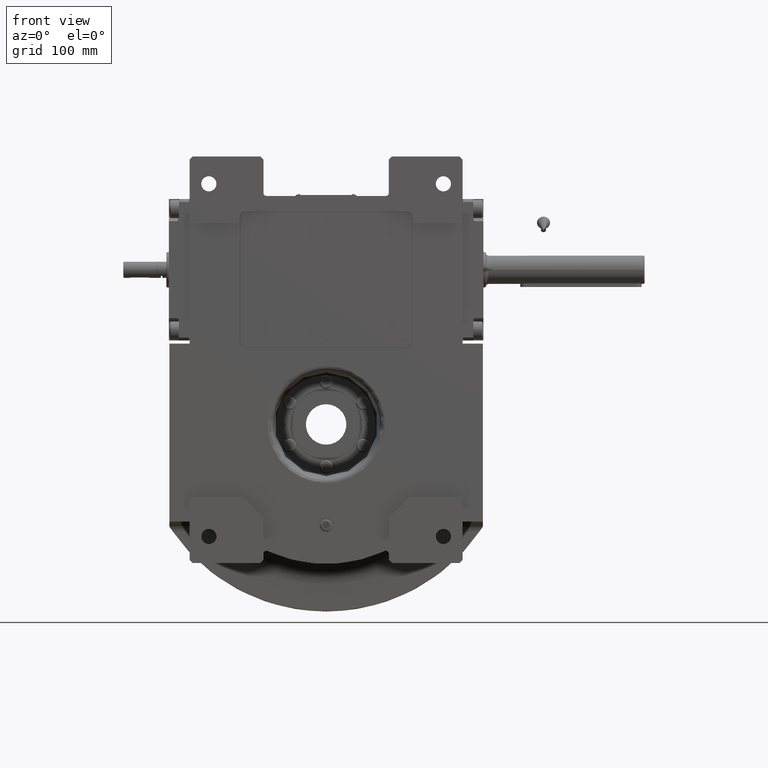
[diagram: clean part render]
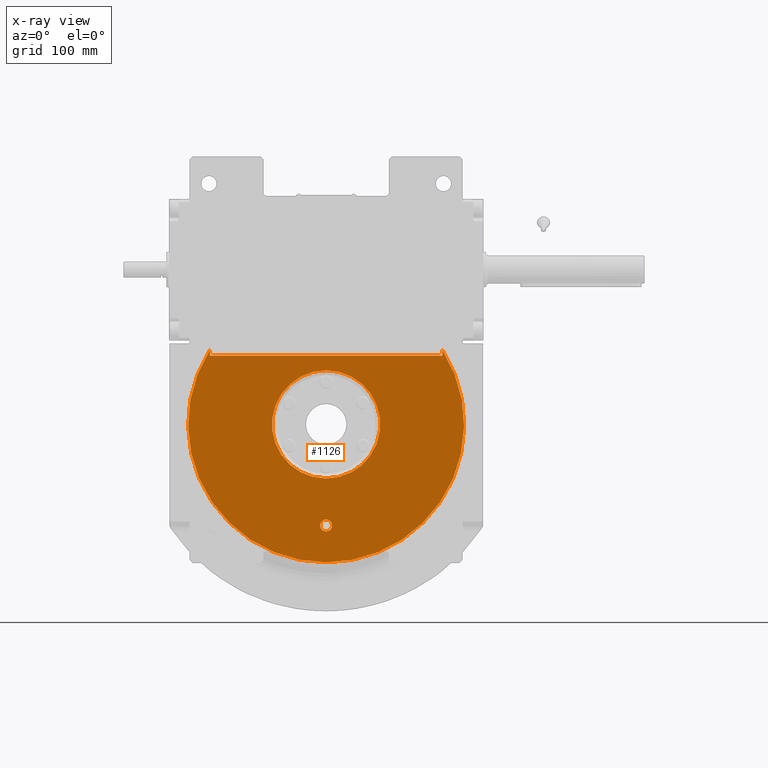
[diagram: x-ray — body ghosted, one internal face saturated and labeled with its STEP entity id]
A machine part, front view, then the same camera in x-ray: the body is ghosted and one INTERNAL B-rep face — a face not visible from any outside direction — is saturated and labeled: STEP entity #1126.
In plain terms, the highlighted planar face has unit normal (0, -1, 0).
Its self-contained STEP definition (entity closure, byte-faithful):
#1126 = ADVANCED_FACE ( 'NONE', ( #46879, #59001, #36199 ), #52613, .F. ) ;
#1329 = DIRECTION ( 'NONE',  ( 0.000000000000000000, 1.000000000000000000, 0.000000000000000000 ) ) ;
#2646 = CIRCLE ( 'NONE', #32324, 53.50000000000000000 ) ;
#3490 = VERTEX_POINT ( 'NONE', #21258 ) ;
#5020 = ORIENTED_EDGE ( 'NONE', *, *, #34447, .F. ) ;
#6085 = DIRECTION ( 'NONE',  ( 0.000000000000000000, 1.000000000000000000, 0.000000000000000000 ) ) ;
#6138 = AXIS2_PLACEMENT_3D ( 'NONE', #60933, #55605, #28851 ) ;
#6642 = CARTESIAN_POINT ( 'NONE',  ( 115.0000000000000000, -63.00000000000000000, 73.53400573884168523 ) ) ;
#7043 = CARTESIAN_POINT ( 'NONE',  ( 0.000000000000000000, -63.00000000000000000, 0.000000000000000000 ) ) ;
#9540 = CARTESIAN_POINT ( 'NONE',  ( -115.0000000000000000, -63.00000000000000000, 73.53400573884168523 ) ) ;
#11994 = DIRECTION ( 'NONE',  ( 0.000000000000000000, 0.000000000000000000, 1.000000000000000000 ) ) ;
#12409 = VERTEX_POINT ( 'NONE', #29758 ) ;
#12526 = ORIENTED_EDGE ( 'NONE', *, *, #68795, .F. ) ;
#12579 = DIRECTION ( 'NONE',  ( 0.000000000000000000, 0.000000000000000000, 1.000000000000000000 ) ) ;
#12972 = EDGE_CURVE ( 'NONE', #12409, #38890, #37408, .T. ) ;
#13334 = CIRCLE ( 'NONE', #17867, 136.5000000000000000 ) ;
#14730 = ORIENTED_EDGE ( 'NONE', *, *, #12972, .F. ) ;
#16296 = VERTEX_POINT ( 'NONE', #24333 ) ;
#16471 = CARTESIAN_POINT ( 'NONE',  ( 0.000000000000000000, -63.00000000000000000, -53.50000000000000000 ) ) ;
#17173 = EDGE_CURVE ( 'NONE', #47104, #17462, #65513, .T. ) ;
#17462 = VERTEX_POINT ( 'NONE', #34718 ) ;
#17587 = CARTESIAN_POINT ( 'NONE',  ( 0.000000000000000000, -62.99999999999998579, 67.99999999999997158 ) ) ;
#17867 = AXIS2_PLACEMENT_3D ( 'NONE', #37782, #25997, #20646 ) ;
#17911 = DIRECTION ( 'NONE',  ( -1.000000000000000000, 0.000000000000000000, 0.000000000000000000 ) ) ;
#18537 = EDGE_CURVE ( 'NONE', #16296, #26764, #49819, .T. ) ;
#19254 = DIRECTION ( 'NONE',  ( 0.000000000000000000, 0.000000000000000000, 1.000000000000000000 ) ) ;
#19511 = ORIENTED_EDGE ( 'NONE', *, *, #23705, .T. ) ;
#20646 = DIRECTION ( 'NONE',  ( 0.000000000000000000, 0.000000000000000000, 1.000000000000000000 ) ) ;
#21258 = CARTESIAN_POINT ( 'NONE',  ( 0.000000000000000000, -63.00000000000000000, -136.5000000000000000 ) ) ;
#23511 = EDGE_LOOP ( 'NONE', ( #12526, #14730 ) ) ;
#23705 = EDGE_CURVE ( 'NONE', #3490, #50209, #70507, .T. ) ;
#24333 = CARTESIAN_POINT ( 'NONE',  ( 115.0000000000000000, -63.00000000000000000, 67.99999999999997158 ) ) ;
#25997 = DIRECTION ( 'NONE',  ( 0.000000000000000000, 1.000000000000000000, 0.000000000000000000 ) ) ;
#26764 = VERTEX_POINT ( 'NONE', #6642 ) ;
#28851 = DIRECTION ( 'NONE',  ( 1.000000000000000000, -2.362176648138630895E-15, 0.000000000000000000 ) ) ;
#29758 = CARTESIAN_POINT ( 'NONE',  ( 6.551860375438339893E-15, -63.00000000000000000, 53.50000000000000000 ) ) ;
#30335 = VECTOR ( 'NONE', #56475, 1000.000000000000000 ) ;
#30850 = DIRECTION ( 'NONE',  ( 0.000000000000000000, -1.000000000000000000, 1.836909530733564901E-16 ) ) ;
#32324 = AXIS2_PLACEMENT_3D ( 'NONE', #67431, #40302, #19254 ) ;
#33204 = EDGE_CURVE ( 'NONE', #26764, #3490, #13334, .T. ) ;
#33614 = VECTOR ( 'NONE', #11994, 1000.000000000000000 ) ;
#34419 = EDGE_CURVE ( 'NONE', #17462, #47104, #43101, .T. ) ;
#34447 = EDGE_CURVE ( 'NONE', #36854, #50209, #61463, .T. ) ;
#34690 = CARTESIAN_POINT ( 'NONE',  ( 0.000000000000000000, -63.00000000000000000, -100.0000000000000000 ) ) ;
#34718 = CARTESIAN_POINT ( 'NONE',  ( -5.875000000000000000, -63.00000000000000000, -100.0000000000000000 ) ) ;
#35828 = CARTESIAN_POINT ( 'NONE',  ( 0.000000000000000000, -63.00000000000000000, 2.534751534906250014E-14 ) ) ;
#36199 = FACE_BOUND ( 'NONE', #23511, .T. ) ;
#36854 = VERTEX_POINT ( 'NONE', #42962 ) ;
#37408 = CIRCLE ( 'NONE', #41949, 53.50000000000000000 ) ;
#37782 = CARTESIAN_POINT ( 'NONE',  ( 0.000000000000000000, -63.00000000000000000, 0.000000000000000000 ) ) ;
#37795 = ORIENTED_EDGE ( 'NONE', *, *, #34419, .T. ) ;
#38890 = VERTEX_POINT ( 'NONE', #16471 ) ;
#39993 = ORIENTED_EDGE ( 'NONE', *, *, #18537, .T. ) ;
#40302 = DIRECTION ( 'NONE',  ( 0.000000000000000000, 1.000000000000000000, 0.000000000000000000 ) ) ;
#40372 = ORIENTED_EDGE ( 'NONE', *, *, #17173, .T. ) ;
#40377 = CARTESIAN_POINT ( 'NONE',  ( -115.0000000000000000, -63.00000000000000000, 0.000000000000000000 ) ) ;
#41365 = CARTESIAN_POINT ( 'NONE',  ( 5.875000000000000000, -63.00000000000000000, -100.0000000000000000 ) ) ;
#41949 = AXIS2_PLACEMENT_3D ( 'NONE', #54257, #6085, #65656 ) ;
#42962 = CARTESIAN_POINT ( 'NONE',  ( -115.0000000000000000, -63.00000000000000000, 67.99999999999997158 ) ) ;
#43006 = EDGE_CURVE ( 'NONE', #16296, #36854, #66481, .T. ) ;
#43101 = CIRCLE ( 'NONE', #69330, 5.875000000000000000 ) ;
#43696 = EDGE_LOOP ( 'NONE', ( #40372, #37795 ) ) ;
#46879 = FACE_OUTER_BOUND ( 'NONE', #61528, .T. ) ;
#47104 = VERTEX_POINT ( 'NONE', #41365 ) ;
#47218 = DIRECTION ( 'NONE',  ( 0.000000000000000000, 1.836909530733564901E-16, 1.000000000000000000 ) ) ;
#48742 = ORIENTED_EDGE ( 'NONE', *, *, #33204, .T. ) ;
#49819 = LINE ( 'NONE', #54846, #33614 ) ;
#50209 = VERTEX_POINT ( 'NONE', #9540 ) ;
#51097 = VECTOR ( 'NONE', #12579, 1000.000000000000000 ) ;
#52613 = PLANE ( 'NONE',  #52885 ) ;
#52885 = AXIS2_PLACEMENT_3D ( 'NONE', #35828, #30850, #47218 ) ;
#54257 = CARTESIAN_POINT ( 'NONE',  ( 0.000000000000000000, -63.00000000000000000, 0.000000000000000000 ) ) ;
#54846 = CARTESIAN_POINT ( 'NONE',  ( 115.0000000000000000, -63.00000000000000000, 0.000000000000000000 ) ) ;
#54850 = ORIENTED_EDGE ( 'NONE', *, *, #43006, .F. ) ;
#55198 = DIRECTION ( 'NONE',  ( 0.000000000000000000, 0.000000000000000000, 1.000000000000000000 ) ) ;
#55605 = DIRECTION ( 'NONE',  ( -1.209434443846979996E-15, -1.000000000000000000, 1.209434443846979996E-15 ) ) ;
#55763 = DIRECTION ( 'NONE',  ( 0.000000000000000000, -1.000000000000000000, 0.000000000000000000 ) ) ;
#56475 = DIRECTION ( 'NONE',  ( -1.000000000000000000, 0.000000000000000000, 0.000000000000000000 ) ) ;
#56770 = AXIS2_PLACEMENT_3D ( 'NONE', #7043, #1329, #55198 ) ;
#59001 = FACE_BOUND ( 'NONE', #43696, .T. ) ;
#60933 = CARTESIAN_POINT ( 'NONE',  ( 0.000000000000000000, -63.00000000000000000, -100.0000000000000000 ) ) ;
#61463 = LINE ( 'NONE', #40377, #51097 ) ;
#61528 = EDGE_LOOP ( 'NONE', ( #5020, #54850, #39993, #48742, #19511 ) ) ;
#65513 = CIRCLE ( 'NONE', #6138, 5.875000000000000000 ) ;
#65656 = DIRECTION ( 'NONE',  ( 0.000000000000000000, 0.000000000000000000, 1.000000000000000000 ) ) ;
#66481 = LINE ( 'NONE', #17587, #30335 ) ;
#67431 = CARTESIAN_POINT ( 'NONE',  ( 0.000000000000000000, -63.00000000000000000, 0.000000000000000000 ) ) ;
#68795 = EDGE_CURVE ( 'NONE', #38890, #12409, #2646, .T. ) ;
#69330 = AXIS2_PLACEMENT_3D ( 'NONE', #34690, #55763, #17911 ) ;
#70507 = CIRCLE ( 'NONE', #56770, 136.5000000000000000 ) ;